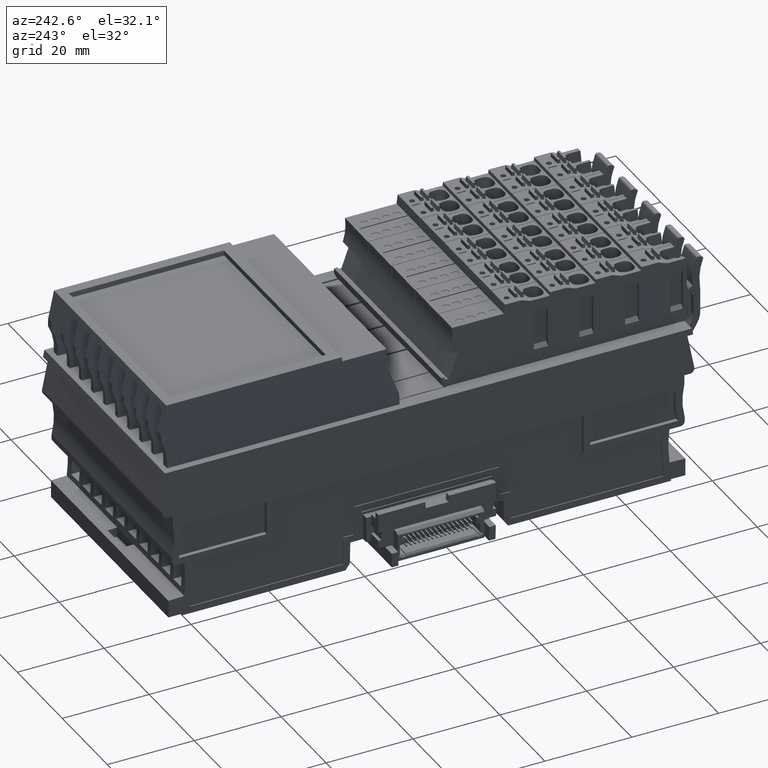
[diagram: clean part render]
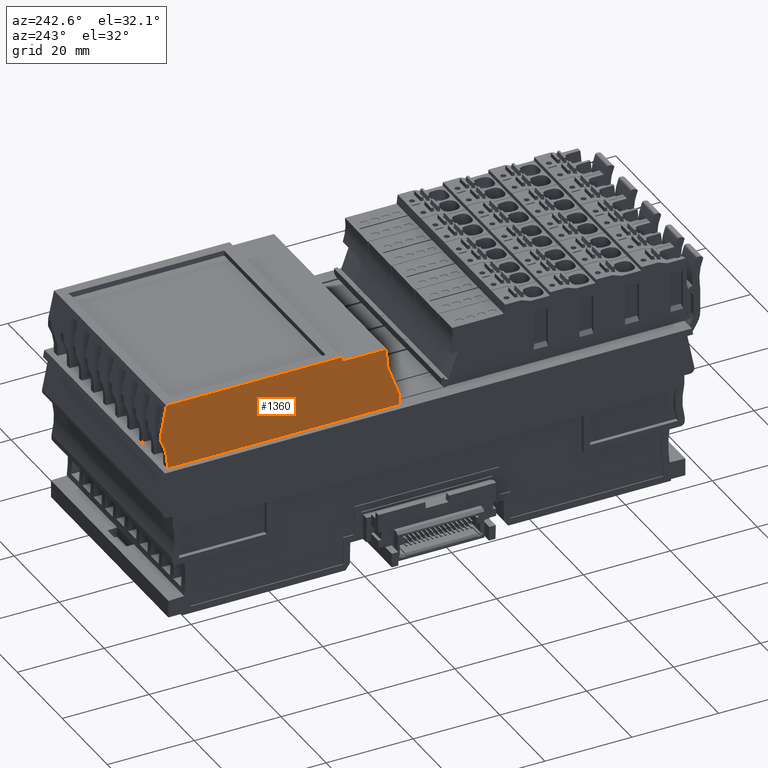
[diagram: same view with one face highlighted and labeled with its STEP entity id]
A machine part, auxiliary view. The second image highlights one B-rep face of the part: STEP entity #1360.
In plain terms, the highlighted planar face has unit normal (0.9998, 0, -0.0175).
Its self-contained STEP definition (entity closure, byte-faithful):
#480=CARTESIAN_POINT('',(-25.5177049165774,25.1682962346954,
-44.3924154969933));
#490=DIRECTION('',(0.00425317876627108,0.139429284473054,
0.990222896676155));
#500=DIRECTION('',(0.992546151641264,0.120017874237264,
-0.0211623894134581));
#510=AXIS2_PLACEMENT_3D('',#480,#490,#500);
#520=PLANE('',#510);
#530=CARTESIAN_POINT('',(101.582735217519,44.5618107872972,
-47.6690563033613));
#540=DIRECTION('',(0.00425317876627102,0.139429284473054,
0.990222896676155));
#550=DIRECTION('',(-0.121795103900376,0.982931932787483,
-0.137879542255405));
#560=AXIS2_PLACEMENT_3D('',#530,#540,#550);
#570=ELLIPSE('',#560,11.7541018629057,11.7523116562597);
#580=CARTESIAN_POINT('',(90.6519863290118,48.8438713478205,
-48.2250464877936));
#590=VERTEX_POINT('',#580);
#600=CARTESIAN_POINT('',(90.0997759745905,42.0917640140524,
-47.2719377011209));
#610=VERTEX_POINT('',#600);
#620=EDGE_CURVE('',#590,#610,#570,.T.);
#630=ORIENTED_EDGE('',*,*,#620,.T.);
#640=CARTESIAN_POINT('',(96.2832756985266,3.39726498100189,
-41.8500808631142));
#650=DIRECTION('',(-0.121795103893799,0.982931932788279,
-0.137879542255545));
#660=VECTOR('',#650,1.);
#670=LINE('',#640,#660);
#680=CARTESIAN_POINT('',(90.4334910706918,50.6072096077298,
-48.4723965473529));
#690=VERTEX_POINT('',#680);
#700=EDGE_CURVE('',#590,#690,#670,.T.);
#710=ORIENTED_EDGE('',*,*,#700,.F.);
#720=CARTESIAN_POINT('',(106.194260026927,3.39048346958201,
-41.8916953793527));
#730=DIRECTION('',(-0.31389186993521,0.940369502330587,
-0.131061409557131));
#740=VECTOR('',#730,1.);
#750=LINE('',#720,#740);
#760=CARTESIAN_POINT('',(88.3505335109321,56.8474150780124,
-49.3421079988987));
#770=VERTEX_POINT('',#760);
#780=EDGE_CURVE('',#690,#770,#750,.T.);
#790=ORIENTED_EDGE('',*,*,#780,.F.);
#800=CARTESIAN_POINT('',(10.5669673313483,47.4418894528007,
-47.6836600620065));
#810=DIRECTION('',(-0.992546151641264,-0.120017874237264,
0.0211623894134582));
#820=VECTOR('',#810,1.);
#830=LINE('',#800,#820);
#840=CARTESIAN_POINT('',(48.2256254438326,51.9955437950341,
-48.4865921840512));
#850=VERTEX_POINT('',#840);
#860=EDGE_CURVE('',#770,#850,#830,.T.);
#870=ORIENTED_EDGE('',*,*,#860,.F.);
#880=CARTESIAN_POINT('',(48.2229150832348,3.43014989672337,
-41.6482836862664));
#890=DIRECTION('',(5.52633282479001E-5,0.990231818846026,
-0.139430778133299));
#900=VECTOR('',#890,1.);
#910=LINE('',#880,#900);
#920=CARTESIAN_POINT('',(48.2255697571867,50.9977267900638,
-48.3460933646942));
#930=VERTEX_POINT('',#920);
#940=EDGE_CURVE('',#930,#850,#910,.T.);
#950=ORIENTED_EDGE('',*,*,#940,.T.);
#960=CARTESIAN_POINT('',(10.5669116447021,46.444072447864,
-47.5431612426541));
#970=DIRECTION('',(-0.992546151641372,-0.12001787423639,
0.0211623894133356));
#980=VECTOR('',#970,1.);
#990=LINE('',#960,#980);
#1000=CARTESIAN_POINT('',(38.1867586776906,49.7838419106258,
-48.1320527087913));
#1010=VERTEX_POINT('',#1000);
#1020=EDGE_CURVE('',#930,#1010,#990,.T.);
#1030=ORIENTED_EDGE('',*,*,#1020,.F.);
#1040=CARTESIAN_POINT('',(41.4565142846256,3.43477975212086,
-41.6198727346818));
#1050=DIRECTION('',(0.0696902767290047,-0.987865564357538,
0.138798026232361));
#1060=VECTOR('',#1050,1.);
#1070=LINE('',#1040,#1060);
#1080=CARTESIAN_POINT('',(38.4835788784995,45.576390470521,
-47.5408933684666));
#1090=VERTEX_POINT('',#1080);
#1100=EDGE_CURVE('',#1010,#1090,#1070,.T.);
#1110=ORIENTED_EDGE('',*,*,#1100,.F.);
#1120=CARTESIAN_POINT('',(28.6581114655028,3.44353695645075,
-41.5661344454972));
#1130=DIRECTION('',(0.2249731215366,0.964713349083689,-0.136803686667474
));
#1140=VECTOR('',#1130,1.);
#1150=LINE('',#1120,#1140);
#1160=CARTESIAN_POINT('',(36.7504368634153,38.1444571516003,
-46.4869887261593));
#1170=VERTEX_POINT('',#1160);
#1180=EDGE_CURVE('',#1170,#1090,#1150,.T.);
#1190=ORIENTED_EDGE('',*,*,#1180,.T.);
#1200=CARTESIAN_POINT('',(40.1227881210857,3.43569234353553,
-41.6142726482271));
#1210=DIRECTION('',(0.0957755056015144,-0.985736432625601,
0.13838619122344));
#1220=VECTOR('',#1210,1.);
#1230=LINE('',#1200,#1220);
#1240=CARTESIAN_POINT('',(36.9908703437143,35.6698782948749,
-46.139585980831));
#1250=VERTEX_POINT('',#1240);
#1260=EDGE_CURVE('',#1170,#1250,#1230,.T.);
#1270=ORIENTED_EDGE('',*,*,#1260,.F.);
#1280=CARTESIAN_POINT('',(10.5661320308752,32.4746204075502,
-45.5761758044901));
#1290=DIRECTION('',(-0.992546151641344,-0.120017874236615,
0.0211623894133672));
#1300=VECTOR('',#1290,1.);
#1310=LINE('',#1280,#1300);
#1320=EDGE_CURVE('',#610,#1250,#1310,.T.);
#1330=ORIENTED_EDGE('',*,*,#1320,.T.);
#1340=EDGE_LOOP('',(#1330,#1270,#1190,#1110,#1030,#950,#870,#790,#710,
#630));
#1350=FACE_OUTER_BOUND('',#1340,.T.);
#1360=ADVANCED_FACE('',(#1350),#520,.F.);